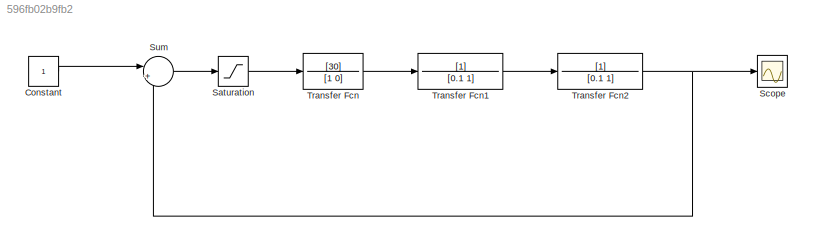
MODEL slx_596fb02b9fb2
KIND model
CONFIG AbsTol = auto
CONFIG EnableMultiTasking = off
CONFIG FixedStep = auto
CONFIG MaxStep = auto
CONFIG MinStep = auto
CONFIG RelTol = 1e-3
CONFIG SampleTimeConstraint = Unconstrained
CONFIG SolverName = VariableStepAuto
CONFIG StartTime = 0.0
CONFIG StopTime = 10.0
BLOCK [Constant] Constant
BLOCK [Saturate] Saturation
  LowerLimit = -10
  UpperLimit = 10
BLOCK [Scope] Scope
  Floating = off
  NumInputPorts = 1
  ScopeSpecificationString = Simulink.scopes.TimeScopeBlockCfg('CurrentConfiguration', extmgr.ConfigurationSet(extmgr.Configuration('Core','General UI',true,'FigureColor',[1 1 1]),extmgr.Configuration('Core','Source UI',true),extmgr.Configuration('Sources','WiredSimulink',true),extmgr.Configuration('Visuals','Time Domain',true,'SerializedDisplays',{struct('MinYLimReal','-21.43493','MaxYLimReal','23.43493','YLabelReal','','Min...<+1907ch>
BLOCK [Sum] Sum
  Inputs = |+-
BLOCK [TransferFcn] Transfer Fcn
  Denominator = [1 0]
  Numerator = [30]
BLOCK [TransferFcn] Transfer Fcn1
  Denominator = [0.1 1]
BLOCK [TransferFcn] Transfer Fcn2
  Denominator = [0.1 1]
LINE Constant:1 -> Sum:1
LINE Saturation:1 -> Transfer Fcn:1
LINE Sum:1 -> Saturation:1
LINE Transfer Fcn1:1 -> Transfer Fcn2:1
NET Transfer Fcn2:1 -> Scope:1, Sum:2
LINE Transfer Fcn:1 -> Transfer Fcn1:1
note: NET lines group one-source signal fan-out (src -> all destinations, sorted); 1:1 wires keep LINE
